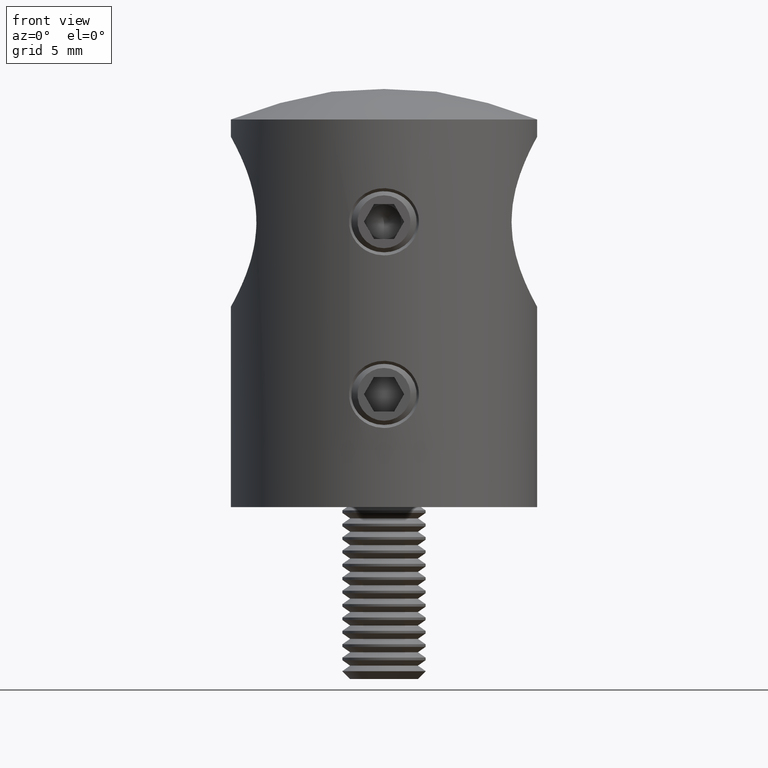
[diagram: clean part render]
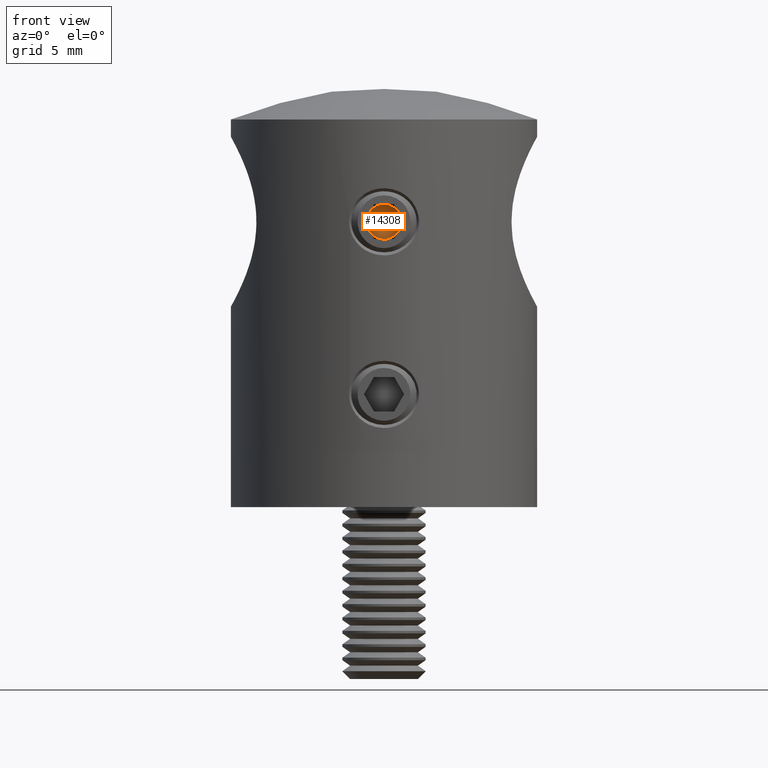
[diagram: same view with one face highlighted and labeled with its STEP entity id]
A machine part, front view. The second image highlights one B-rep face of the part: STEP entity #14308.
In plain terms, the highlighted conical surface has half-angle 59 deg.
Its self-contained STEP definition (entity closure, byte-faithful):
#1527 = CARTESIAN_POINT ( 'NONE',  ( 2.000000000000001300, 0.0000000000000000000, 5.755839955992561400E-015 ) ) ;
#2069 = DIRECTION ( 'NONE',  ( -1.000000000000000000, -0.0000000000000000000, 0.0000000000000000000 ) ) ;
#2762 = DIRECTION ( 'NONE',  ( -1.000000000000000000, -0.0000000000000000000, 0.0000000000000000000 ) ) ;
#2940 = EDGE_CURVE ( 'NONE', #17456, #7316, #20249, .T. ) ;
#3177 = DIRECTION ( 'NONE',  ( 3.469446951953599400E-016, 0.0000000000000000000, -1.000000000000000000 ) ) ;
#3883 = AXIS2_PLACEMENT_3D ( 'NONE', #12413, #19272, #8932 ) ;
#3980 = EDGE_CURVE ( 'NONE', #9301, #11694, #15427, .T. ) ;
#4483 = ORIENTED_EDGE ( 'NONE', *, *, #4877, .F. ) ;
#4877 = EDGE_CURVE ( 'NONE', #5902, #9301, #6471, .T. ) ;
#5451 = CARTESIAN_POINT ( 'NONE',  ( 2.000000000000001300, 1.082531754730553100, -0.6249999999999965600 ) ) ;
#5902 = VERTEX_POINT ( 'NONE', #15559 ) ;
#6394 = DIRECTION ( 'NONE',  ( 0.0000000000000000000, 0.0000000000000000000, 1.000000000000000000 ) ) ;
#6471 = CIRCLE ( 'NONE', #9217, 1.250000000000002900 ) ;
#6902 = CARTESIAN_POINT ( 'NONE',  ( 2.000000000000001300, 1.082531754730552600, 0.6250000000000085500 ) ) ;
#7316 = VERTEX_POINT ( 'NONE', #19374 ) ;
#7365 = EDGE_CURVE ( 'NONE', #18508, #5902, #19661, .T. ) ;
#7370 = DIRECTION ( 'NONE',  ( 0.0000000000000000000, 0.0000000000000000000, 1.000000000000000000 ) ) ;
#7450 = CARTESIAN_POINT ( 'NONE',  ( 2.000000000000000000, 0.0000000000000000000, 6.209410300080172700E-015 ) ) ;
#7747 = ORIENTED_EDGE ( 'NONE', *, *, #2940, .F. ) ;
#8232 = ORIENTED_EDGE ( 'NONE', *, *, #8383, .T. ) ;
#8383 = EDGE_CURVE ( 'NONE', #17456, #11694, #11284, .T. ) ;
#8584 = EDGE_CURVE ( 'NONE', #7316, #18508, #16663, .T. ) ;
#8932 = DIRECTION ( 'NONE',  ( 0.0000000000000000000, 0.0000000000000000000, 1.000000000000000000 ) ) ;
#8983 = CONICAL_SURFACE ( 'NONE', #20988, 1.250000000000005300, 1.029744258676652800 ) ;
#9217 = AXIS2_PLACEMENT_3D ( 'NONE', #13950, #2069, #7370 ) ;
#9301 = VERTEX_POINT ( 'NONE', #6902 ) ;
#9307 = CARTESIAN_POINT ( 'NONE',  ( 2.000000000000000000, 0.0000000000000000000, 6.209410300080172700E-015 ) ) ;
#9368 = CARTESIAN_POINT ( 'NONE',  ( 2.000000000000001300, 0.0000000000000000000, 5.755839955992561400E-015 ) ) ;
#9377 = DIRECTION ( 'NONE',  ( -1.000000000000000000, -0.0000000000000000000, 0.0000000000000000000 ) ) ;
#9855 = ORIENTED_EDGE ( 'NONE', *, *, #7365, .F. ) ;
#10926 = DIRECTION ( 'NONE',  ( 0.0000000000000000000, 0.0000000000000000000, 1.000000000000000000 ) ) ;
#10956 = DIRECTION ( 'NONE',  ( 3.469446951953599400E-016, 0.0000000000000000000, -1.000000000000000000 ) ) ;
#10979 = AXIS2_PLACEMENT_3D ( 'NONE', #7450, #21262, #10926 ) ;
#11284 = CIRCLE ( 'NONE', #17059, 1.250000000000005300 ) ;
#11391 = CARTESIAN_POINT ( 'NONE',  ( 2.000000000000000000, 0.0000000000000000000, 6.209410300080172700E-015 ) ) ;
#11694 = VERTEX_POINT ( 'NONE', #5451 ) ;
#12413 = CARTESIAN_POINT ( 'NONE',  ( 2.000000000000000000, 0.0000000000000000000, 6.209410300080172700E-015 ) ) ;
#13553 = AXIS2_PLACEMENT_3D ( 'NONE', #11391, #2762, #6394 ) ;
#13950 = CARTESIAN_POINT ( 'NONE',  ( 2.000000000000000000, 0.0000000000000000000, 6.209410300080172700E-015 ) ) ;
#14308 = ADVANCED_FACE ( 'NONE', ( #14933 ), #8983, .F. ) ;
#14933 = FACE_OUTER_BOUND ( 'NONE', #19557, .T. ) ;
#15327 = ORIENTED_EDGE ( 'NONE', *, *, #3980, .F. ) ;
#15427 = CIRCLE ( 'NONE', #13553, 1.250000000000002900 ) ;
#15559 = CARTESIAN_POINT ( 'NONE',  ( 2.000000000000000000, 0.0000000000000000000, 1.250000000000000200 ) ) ;
#16171 = DIRECTION ( 'NONE',  ( 1.000000000000000000, -0.0000000000000000000, 2.180260461768213300E-016 ) ) ;
#16663 = CIRCLE ( 'NONE', #3883, 1.250000000000002900 ) ;
#16974 = CARTESIAN_POINT ( 'NONE',  ( 2.000000000000001800, 3.755786496842908900E-016, -1.249999999999999300 ) ) ;
#17059 = AXIS2_PLACEMENT_3D ( 'NONE', #1527, #18749, #3177 ) ;
#17456 = VERTEX_POINT ( 'NONE', #16974 ) ;
#17500 = ORIENTED_EDGE ( 'NONE', *, *, #8584, .F. ) ;
#18508 = VERTEX_POINT ( 'NONE', #21514 ) ;
#18749 = DIRECTION ( 'NONE',  ( 1.000000000000000000, -0.0000000000000000000, 2.180260461768213300E-016 ) ) ;
#19272 = DIRECTION ( 'NONE',  ( -1.000000000000000000, -0.0000000000000000000, 0.0000000000000000000 ) ) ;
#19374 = CARTESIAN_POINT ( 'NONE',  ( 2.000000000000001300, -1.082531754730553300, -0.6249999999999958900 ) ) ;
#19557 = EDGE_LOOP ( 'NONE', ( #8232, #15327, #4483, #9855, #17500, #7747 ) ) ;
#19661 = CIRCLE ( 'NONE', #10979, 1.250000000000002900 ) ;
#20185 = AXIS2_PLACEMENT_3D ( 'NONE', #9307, #9377, #21447 ) ;
#20249 = CIRCLE ( 'NONE', #20185, 1.250000000000002900 ) ;
#20988 = AXIS2_PLACEMENT_3D ( 'NONE', #9368, #16171, #10956 ) ;
#21262 = DIRECTION ( 'NONE',  ( -1.000000000000000000, -0.0000000000000000000, 0.0000000000000000000 ) ) ;
#21447 = DIRECTION ( 'NONE',  ( 0.0000000000000000000, 0.0000000000000000000, 1.000000000000000000 ) ) ;
#21514 = CARTESIAN_POINT ( 'NONE',  ( 2.000000000000001300, -1.082531754730552600, 0.6250000000000086600 ) ) ;